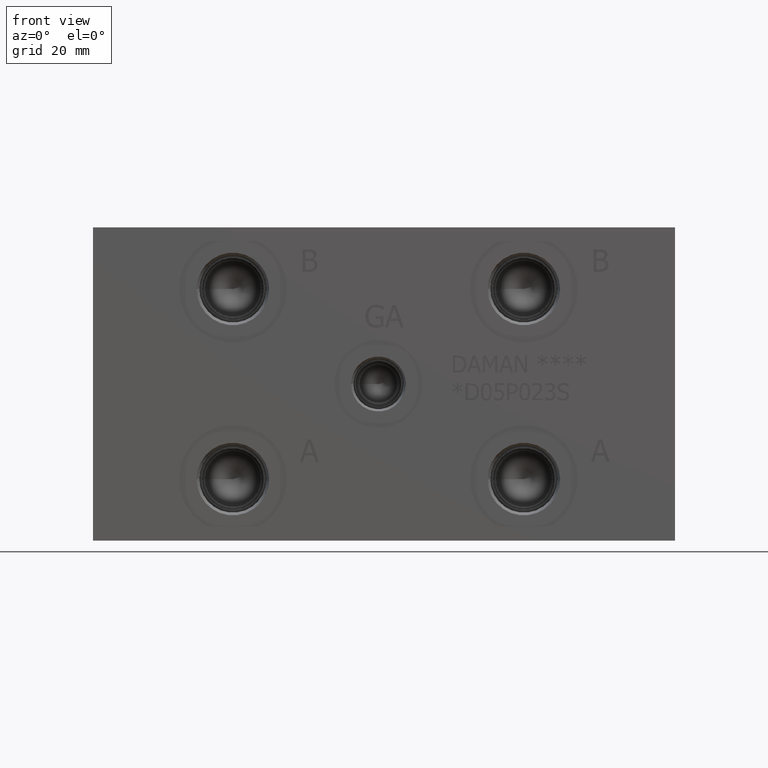
[diagram: clean part render]
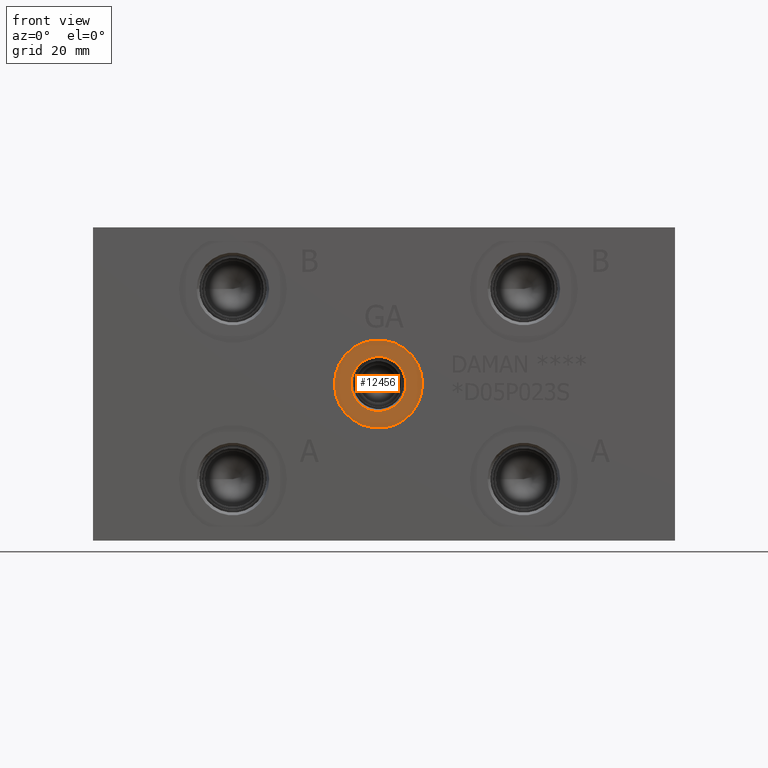
[diagram: same view with one face highlighted and labeled with its STEP entity id]
A machine part, front view. The second image highlights one B-rep face of the part: STEP entity #12456.
In plain terms, the highlighted planar face has unit normal (0, 1, 0).
Its self-contained STEP definition (entity closure, byte-faithful):
#202=CIRCLE('',#13010,12.5095);
#203=CIRCLE('',#13011,12.5095);
#204=CIRCLE('',#13013,7.79780000000001);
#205=CIRCLE('',#13014,7.79780000000001);
#500=FACE_BOUND('',#2110,.T.);
#862=PLANE('',#13012);
#1397=FACE_OUTER_BOUND('',#2109,.T.);
#2109=EDGE_LOOP('',(#10571,#10572));
#2110=EDGE_LOOP('',(#10573,#10574));
#5820=VERTEX_POINT('',#21057);
#5821=VERTEX_POINT('',#21059);
#5822=VERTEX_POINT('',#21063);
#5823=VERTEX_POINT('',#21064);
#7474=EDGE_CURVE('',#5820,#5821,#202,.T.);
#7475=EDGE_CURVE('',#5821,#5820,#203,.T.);
#7476=EDGE_CURVE('',#5822,#5823,#204,.T.);
#7477=EDGE_CURVE('',#5823,#5822,#205,.T.);
#10571=ORIENTED_EDGE('',*,*,#7475,.F.);
#10572=ORIENTED_EDGE('',*,*,#7474,.F.);
#10573=ORIENTED_EDGE('',*,*,#7476,.T.);
#10574=ORIENTED_EDGE('',*,*,#7477,.T.);
#12456=ADVANCED_FACE('',(#1397,#500),#862,.F.);
#13010=AXIS2_PLACEMENT_3D('',#21060,#15191,#15192);
#13011=AXIS2_PLACEMENT_3D('',#21061,#15193,#15194);
#13012=AXIS2_PLACEMENT_3D('',#21062,#15195,#15196);
#13013=AXIS2_PLACEMENT_3D('',#21065,#15197,#15198);
#13014=AXIS2_PLACEMENT_3D('',#21066,#15199,#15200);
#15191=DIRECTION('center_axis',(0.,1.,0.));
#15192=DIRECTION('ref_axis',(1.,0.,0.));
#15193=DIRECTION('center_axis',(0.,1.,0.));
#15194=DIRECTION('ref_axis',(1.,0.,0.));
#15195=DIRECTION('center_axis',(0.,1.,0.));
#15196=DIRECTION('ref_axis',(0.,0.,1.));
#15197=DIRECTION('center_axis',(0.,1.,0.));
#15198=DIRECTION('ref_axis',(1.,0.,0.));
#15199=DIRECTION('center_axis',(0.,1.,0.));
#15200=DIRECTION('ref_axis',(1.,0.,0.));
#21057=CARTESIAN_POINT('',(68.4657,0.7874,44.45));
#21059=CARTESIAN_POINT('',(93.4847,0.7874,44.45));
#21060=CARTESIAN_POINT('Origin',(80.9752,0.7874,44.45));
#21061=CARTESIAN_POINT('Origin',(80.9752,0.7874,44.45));
#21062=CARTESIAN_POINT('Origin',(88.773,0.7874,44.45));
#21063=CARTESIAN_POINT('',(88.773,0.7874,44.45));
#21064=CARTESIAN_POINT('',(73.1774,0.787400000000002,44.45));
#21065=CARTESIAN_POINT('Origin',(80.9752,0.7874,44.45));
#21066=CARTESIAN_POINT('Origin',(80.9752,0.7874,44.45));